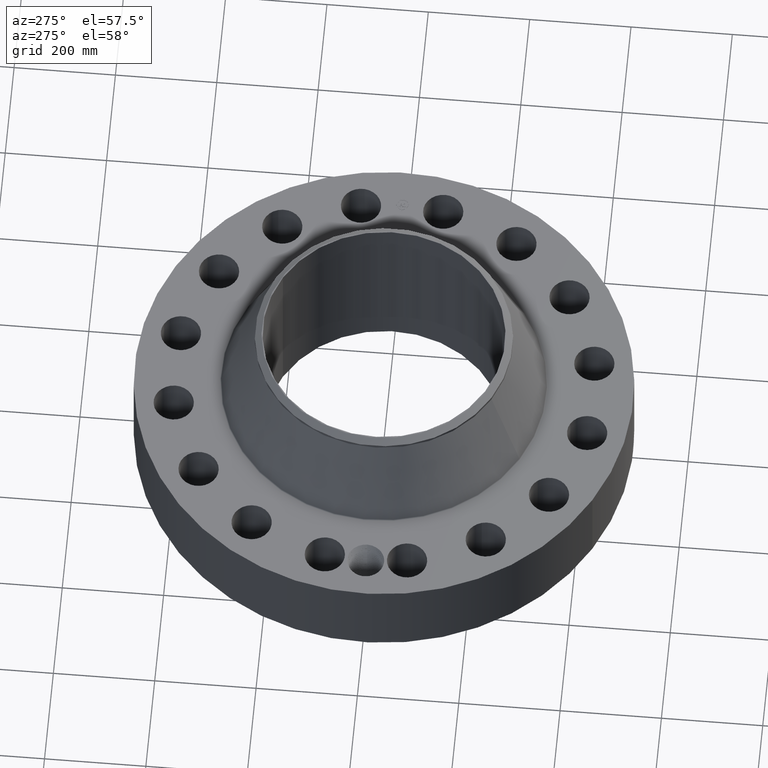
[diagram: clean part render]
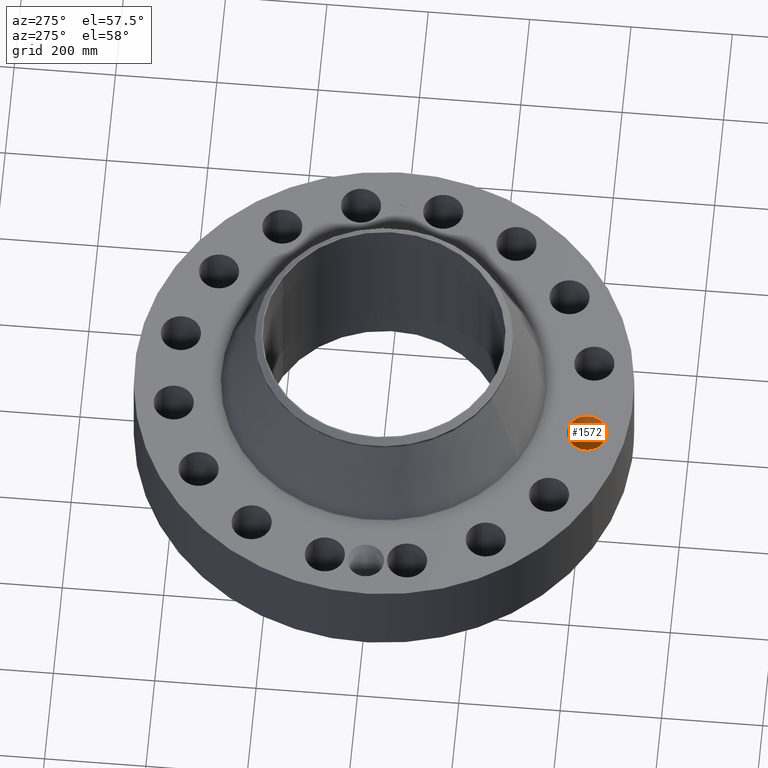
[diagram: same view with one face highlighted and labeled with its STEP entity id]
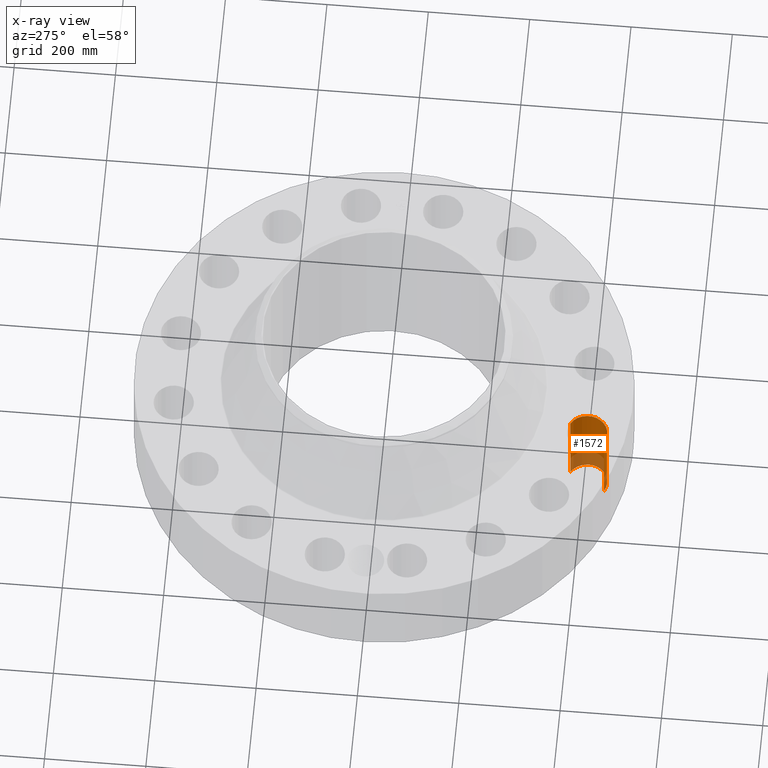
[diagram: x-ray of the same camera — body ghosted, the highlighted face saturated]
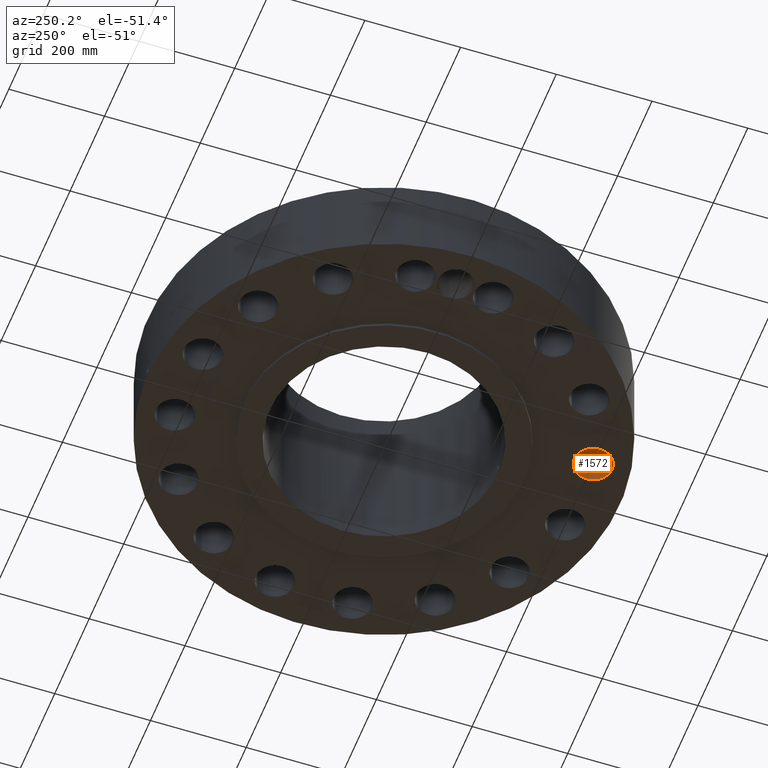
[diagram: same view with one face highlighted and labeled with its STEP entity id]
A machine part, auxiliary view. The second image highlights one B-rep face of the part: STEP entity #1572.
The next image is the same camera in x-ray: the body ghosted, the highlighted face saturated — about 27% of this face is hidden behind the body in this view.
A second angle (auxiliary view) of the same face is appended — the face is thin or edge-on in the first view.
In plain terms, the highlighted cylindrical surface (edge-blend (fillet) strip) has radius 39.624 mm, axis along (0, -0, -1).
Its self-contained STEP definition (entity closure, byte-faithful):
#332=AXIS2_PLACEMENT_3D('Circle Axis2P3D',#330,#331,$) ;
#820=AXIS2_PLACEMENT_3D('Circle Axis2P3D',#818,#819,$) ;
#1554=AXIS2_PLACEMENT_3D('Cylinder Axis2P3D',#1551,#1552,#1553) ;
#330=CARTESIAN_POINT('Axis2P3D Location',(-3.19460402303,-16.0603589667,0.250000000001)) ;
#334=CARTESIAN_POINT('Vertex',(-2.4467001828,-14.6913301701,0.250000000001)) ;
#336=CARTESIAN_POINT('Vertex',(-3.94250786325,-17.4293877632,0.250000000001)) ;
#813=CARTESIAN_POINT('Vertex',(-3.94250786325,-17.4293877632,7.25000000003)) ;
#815=CARTESIAN_POINT('Vertex',(-2.4467001828,-14.6913301701,7.25000000003)) ;
#818=CARTESIAN_POINT('Axis2P3D Location',(-3.19460402303,-16.0603589667,7.25000000003)) ;
#1551=CARTESIAN_POINT('Axis2P3D Location',(-3.19460402303,-16.0603589667,7.24606299215)) ;
#1556=CARTESIAN_POINT('Line Origine',(-2.4467001828,-14.6913301701,3.75000000002)) ;
#1561=CARTESIAN_POINT('Line Origine',(-3.94250786325,-17.4293877632,3.75000000002)) ;
#331=DIRECTION('Axis2P3D Direction',(0.,0.,-0.0393700787402)) ;
#819=DIRECTION('Axis2P3D Direction',(0.,0.,-0.0393700787402)) ;
#1552=DIRECTION('Axis2P3D Direction',(0.,-0.,-0.0393700787402)) ;
#1553=DIRECTION('Axis2P3D XDirection',(-0.0188750212049,-0.0345504945626,0.)) ;
#1557=DIRECTION('Vector Direction',(0.,0.,-0.0393700787402)) ;
#1562=DIRECTION('Vector Direction',(0.,0.,-0.0393700787402)) ;
#1558=VECTOR('Line Direction',#1557,0.0393700787402) ;
#1563=VECTOR('Line Direction',#1562,0.0393700787402) ;
#1567=ORIENTED_EDGE('',*,*,#1560,.F.) ;
#1568=ORIENTED_EDGE('',*,*,#338,.T.) ;
#1569=ORIENTED_EDGE('',*,*,#1565,.T.) ;
#1570=ORIENTED_EDGE('',*,*,#822,.F.) ;
#1572=ADVANCED_FACE('PartBody',(#1571),#1555,.F.) ;
#333=CIRCLE('generated circle',#332,1.56000000001) ;
#821=CIRCLE('generated circle',#820,1.56000000001) ;
#1555=CYLINDRICAL_SURFACE('generated cylinder',#1554,1.56000000001) ;
#338=EDGE_CURVE('',#335,#337,#333,.T.) ;
#822=EDGE_CURVE('',#816,#814,#821,.T.) ;
#1560=EDGE_CURVE('',#335,#816,#1559,.F.) ;
#1565=EDGE_CURVE('',#337,#814,#1564,.F.) ;
#1566=EDGE_LOOP('',(#1567,#1568,#1569,#1570)) ;
#1571=FACE_OUTER_BOUND('',#1566,.T.) ;
#1559=LINE('Line',#1556,#1558) ;
#1564=LINE('Line',#1561,#1563) ;
#335=VERTEX_POINT('',#334) ;
#337=VERTEX_POINT('',#336) ;
#814=VERTEX_POINT('',#813) ;
#816=VERTEX_POINT('',#815) ;